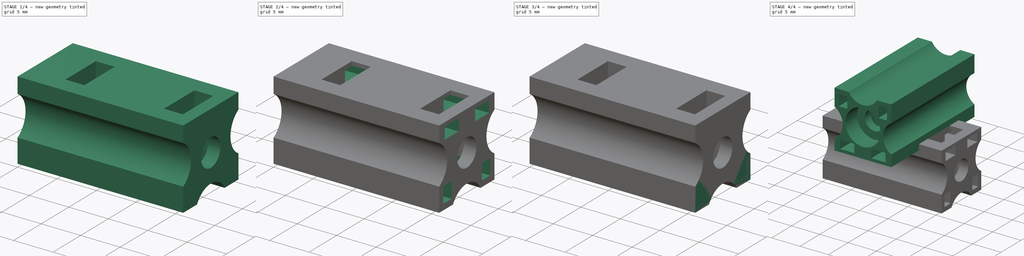
[diagram: build sequence overview — one tinted view per stage of 4, left to right]
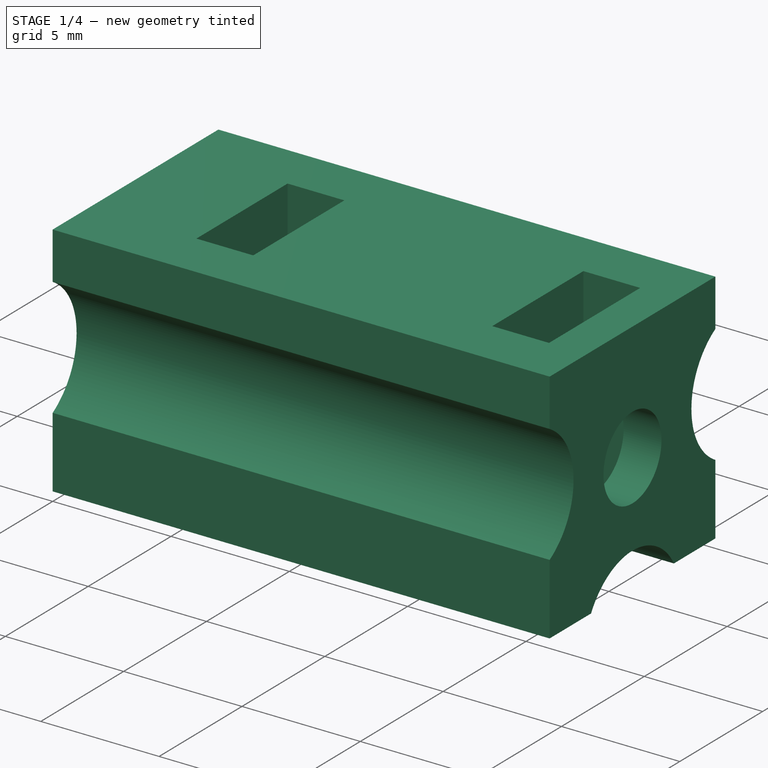
[diagram: stage 1 of 4 — iso view after this stage's code; geometry added in this stage tinted green]
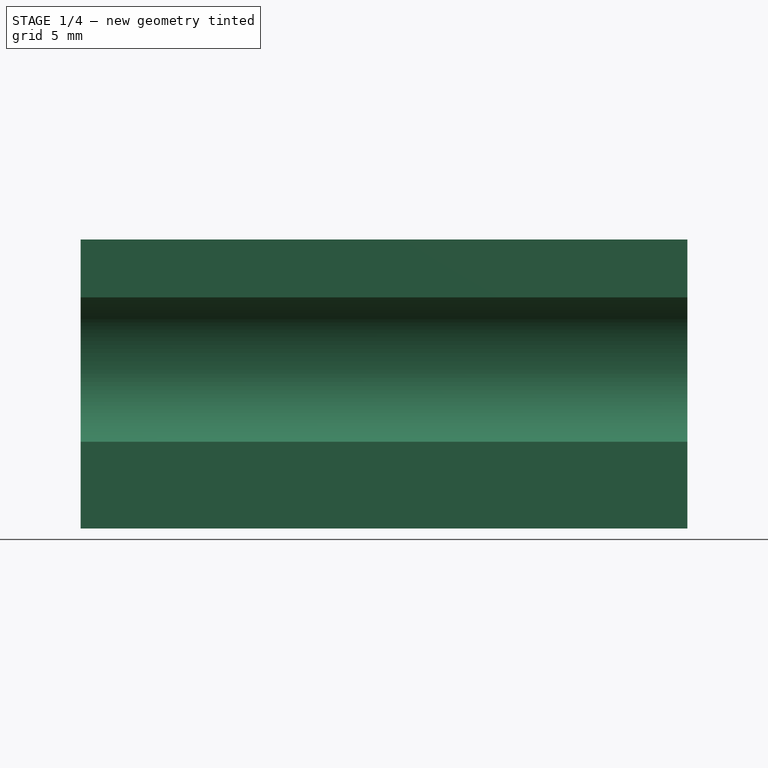
[diagram: stage 1 of 4 — front view after this stage's code; geometry added in this stage tinted green]
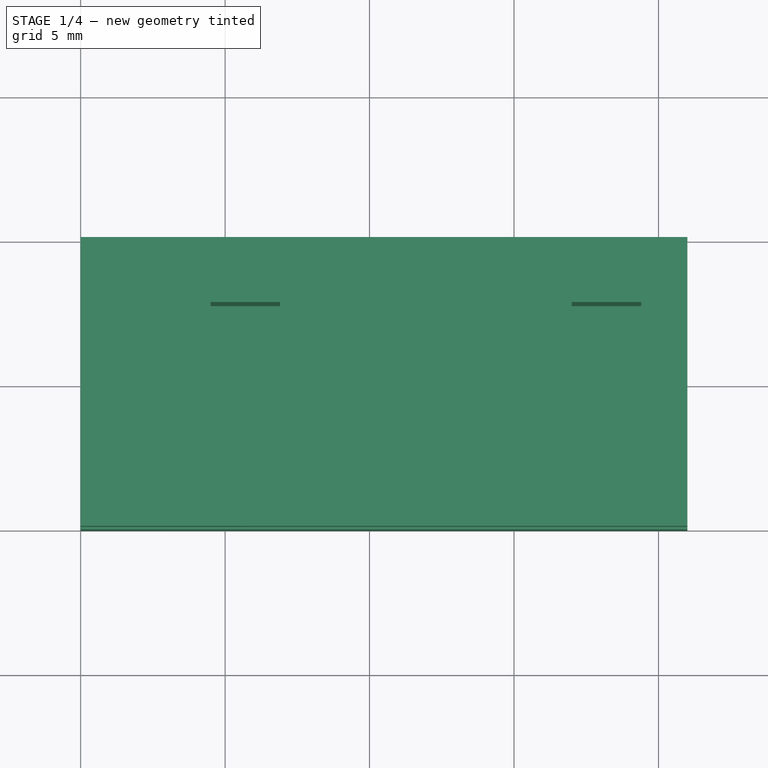
[diagram: stage 1 of 4 — top view after this stage's code; geometry added in this stage tinted green]
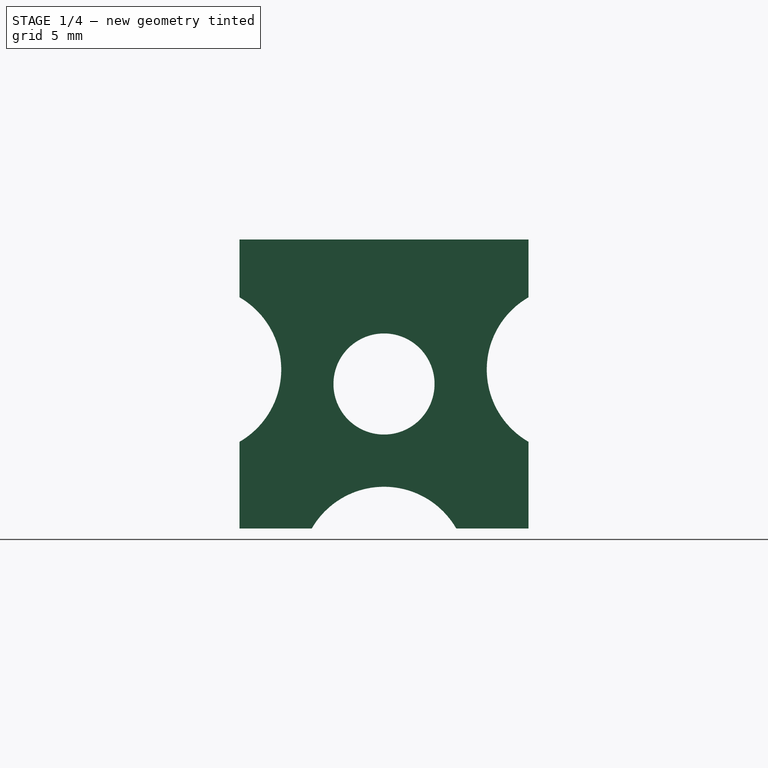
[diagram: stage 1 of 4 — right view after this stage's code; geometry added in this stage tinted green]
FCSTD DOCUMENT  (FreeCAD 0.19R24344 (Git))
Label: MicroManipulator_Carriage_bottom-center
Comment: This is the carriage for X and Y axis of the MicroManipulator. This is derived from the Carriage (combination of 2).
License: Creative Commons Attribution-NonCommercial-ShareAlike
LicenseURL: http://creativecommons.org/licenses/by-nc-sa/4.0/
objects: Sketcher::SketchObject×14, PartDesign::Pocket×6, PartDesign::CoordinateSystem×3, PartDesign::Pad×2, PartDesign::Body×2, Part::MultiFuse×1, App::Part×1
note: 36 computed .brp shape members not serialized (recipe doc carries the construction recipe); baked Part::Feature solids carry a one-line shape summary decoded from their .brp

FEATURE [Sketcher::SketchObject] Sketch
  FullyConstrained = true
  MapMode = 5
  Placement = pos=(0,0,0) rot=(0.57735,0.57735,0.57735;2.0944rad)
  Support = -> [YZ_Plane001]
  sketch-geometry (11):
    g0: LineSegment StartX=-5 StartY=8 StartZ=0 EndX=-5 EndY=10 EndZ=0
    g1: LineSegment StartX=-5 StartY=10 StartZ=0 EndX=5 EndY=10 EndZ=0
    g2: LineSegment StartX=5 StartY=10 StartZ=0 EndX=5 EndY=8 EndZ=0
    g3: LineSegment StartX=5 StartY=3 StartZ=0 EndX=5 EndY=4e-16 EndZ=0
    g4: LineSegment StartX=5 StartY=4e-16 StartZ=0 EndX=2.5 EndY=4e-16 EndZ=0
    g5: LineSegment StartX=-2.5 StartY=-2e-16 StartZ=0 EndX=-5 EndY=-2e-16 EndZ=0
    g6: LineSegment StartX=-5 StartY=-2e-16 StartZ=0 EndX=-5 EndY=3 EndZ=0
    g7: ArcOfCircle CenterX=2e-16 CenterY=-1.44338 CenterZ=0 NormalX=0 NormalY=0 NormalZ=1 AngleXU=0 Radius=2.88675 StartAngle=0.523599 EndAngle=2.61799
    g8: ArcOfCircle CenterX=-6.44338 CenterY=5.5 CenterZ=0 NormalX=0 NormalY=0 NormalZ=1 AngleXU=0 Radius=2.88675 StartAngle=5.23599 EndAngle=7.33038
    g9: ArcOfCircle CenterX=6.44338 CenterY=5.5 CenterZ=0 NormalX=0 NormalY=0 NormalZ=1 AngleXU=0 Radius=2.88675 StartAngle=2.0944 EndAngle=4.18879
    g10: Circle CenterX=0 CenterY=5 CenterZ=0 NormalX=0 NormalY=0 NormalZ=1 AngleXU=0 Radius=1.75
  constraints (34):
    c: Vertical(g0)
    c: Coincident(g1,g0)
    c: Coincident(g2,g1)
    c: Vertical(g2)
    c: Vertical(g3)
    c: Coincident(g4,g3)
    c: Horizontal(g4)
    c: Horizontal(g5)
    c: Coincident(g6,g5)
    c: Vertical(g6)
    c: Coincident(g7,g5)
    c: Coincident(g7,g4)
    c: Coincident(g8,g6)
    c: Coincident(g8,g0)
    c: Coincident(g9,g3)
    c: Coincident(g9,g2)
    c: Vertical(g0,g6)
    c: Vertical(g2,g3)
    c: Angle(g8) = 2.0944
    c: Angle(g9) = 2.0944
    c: Angle(g7) = 2.0944
    c: Distance(g1) = 10
    c: Distance(g5,g4) = 5
    c: Distance(g6,g0) = 5
    c: Distance(g2,g3) = 5
    c: Horizontal(g0,g2)
    c: Symmetric(g1,g0,g-2)
    c: PointOnObject(g3,g-1)
    c: Symmetric(g4,g5,g-2)
    c: Distance(g0,g5) = 10
    c: Distance(g6,g5) = 3
    c: PointOnObject(g10,g-2)
    c: Diameter(g10) = 3.5
    c: DistanceY(g10) = 5
FEATURE [PartDesign::Pad] Pad
  Direction = (1,1,1)
  Length = 21
  Length2 = 100
  Placement = pos=(0,0,0) rot=(0.57735,0.57735,0.57735;2.0944rad)
  Profile = -> Sketch
  Type = 0
FEATURE [Sketcher::SketchObject] Sketch002
  FullyConstrained = true
  MapMode = 5
  Placement = pos=(-3e-15,4e-15,10) rot=(0,0,-1;1.5708rad)
  sketch-geometry (8):
    g0: LineSegment StartX=-2.75 StartY=6.9 StartZ=0 EndX=2.75 EndY=6.9 EndZ=0
    g1: LineSegment StartX=2.75 StartY=6.9 StartZ=0 EndX=2.75 EndY=4.5 EndZ=0
    g2: LineSegment StartX=2.75 StartY=4.5 StartZ=0 EndX=-2.75 EndY=4.5 EndZ=0
    g3: LineSegment StartX=-2.75 StartY=4.5 StartZ=0 EndX=-2.75 EndY=6.9 EndZ=0
    g4: LineSegment StartX=-2.75 StartY=19.4 StartZ=0 EndX=2.75 EndY=19.4 EndZ=0
    g5: LineSegment StartX=2.75 StartY=19.4 StartZ=0 EndX=2.75 EndY=17 EndZ=0
    g6: LineSegment StartX=2.75 StartY=17 StartZ=0 EndX=-2.75 EndY=17 EndZ=0
    g7: LineSegment StartX=-2.75 StartY=17 StartZ=0 EndX=-2.75 EndY=19.4 EndZ=0
  constraints (22):
    c: Coincident(g0,g1)
    c: Coincident(g1,g2)
    c: Coincident(g2,g3)
    c: Coincident(g3,g0)
    c: Horizontal(g2)
    c: Vertical(g1)
    c: Vertical(g3)
    c: Distance(g3) = 2.4
    c: Distance(g0) = 5.5
    c: Symmetric(g0,g0,g-2)
    c: DistanceY(g-1,g1) = 4.5
    c: Coincident(g4,g5)
    c: Coincident(g5,g6)
    c: Coincident(g6,g7)
    c: Coincident(g7,g4)
    c: Horizontal(g6)
    c: Vertical(g5)
    c: Vertical(g7)
    c: Distance(g7) = 2.4
    c: Distance(g4) = 5.5
    c: Symmetric(g4,g4,g-2)
    c: DistanceY(g-1,g5) = 17
FEATURE [PartDesign::Pocket] Pocket
  BaseFeature = -> Pad
  Length = 8
  Length2 = 100
  Placement = pos=(0,0,0) rot=(0.57735,0.57735,0.57735;2.0944rad)
  Profile = -> Sketch002
  Type = 0
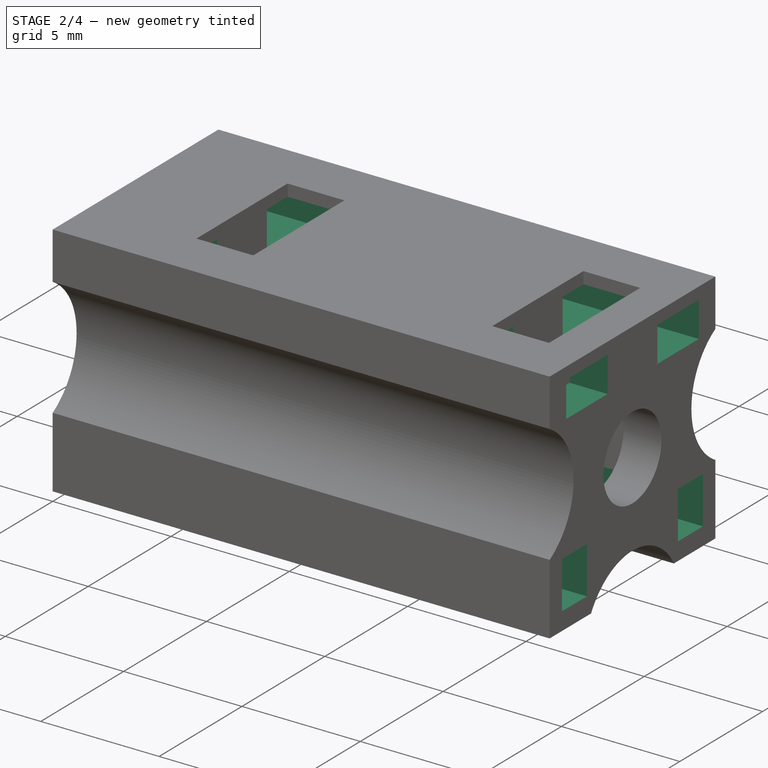
[diagram: stage 2 of 4 — iso view after this stage's code; geometry added in this stage tinted green]
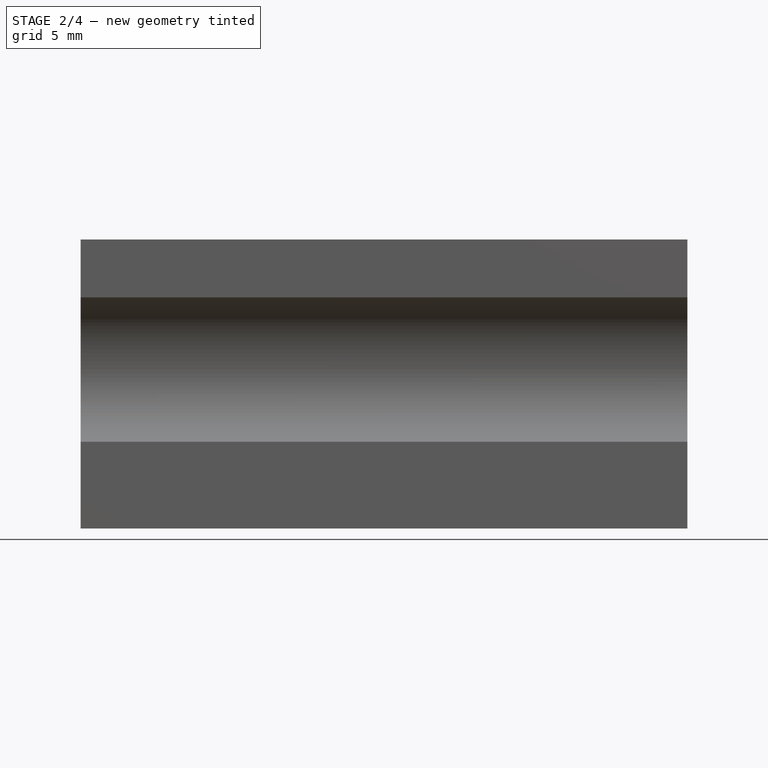
[diagram: stage 2 of 4 — front view after this stage's code; geometry added in this stage tinted green]
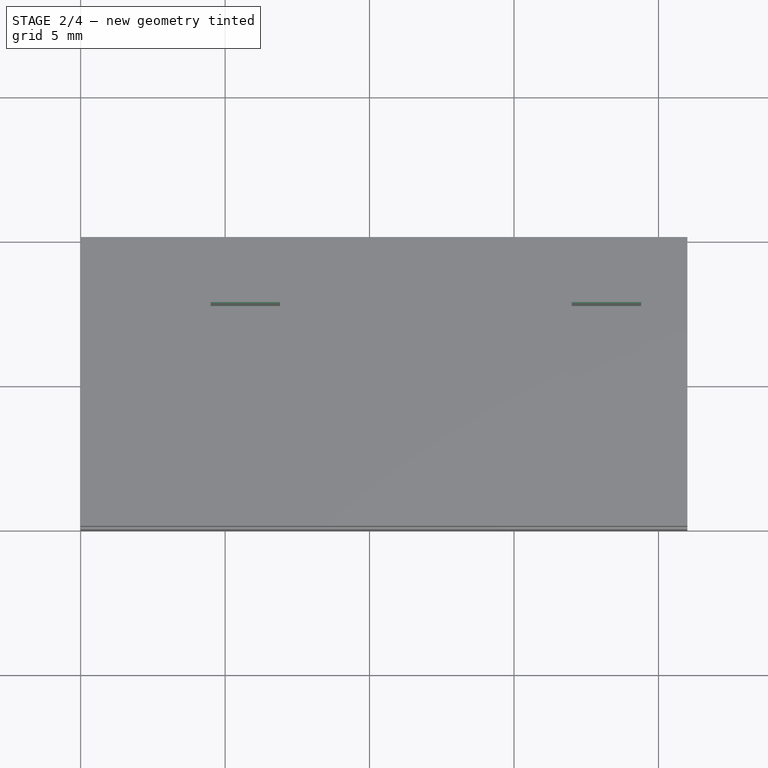
[diagram: stage 2 of 4 — top view after this stage's code; geometry added in this stage tinted green]
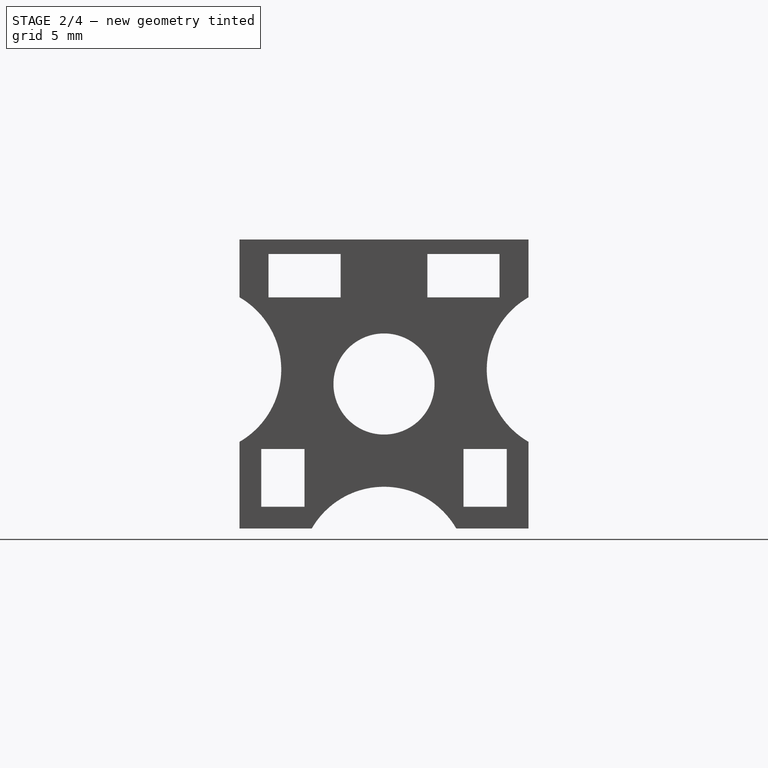
[diagram: stage 2 of 4 — right view after this stage's code; geometry added in this stage tinted green]
FEATURE [Sketcher::SketchObject] Sketch003
  FullyConstrained = true
  MapMode = 5
  Placement = pos=(0,0,0) rot=(0.57735,0.57735,-0.57735;4.18879rad)
  Support = -> [Pocket]
  sketch-geometry (1):
    g0: Circle CenterX=0 CenterY=-5 CenterZ=0 NormalX=0 NormalY=0 NormalZ=1 AngleXU=0 Radius=3.1
  constraints (3):
    c: PointOnObject(g0,g-2)
    c: Diameter(g0) = 6.2
    c: DistanceY(g0,g-1) = 5
FEATURE [PartDesign::Pocket] Pocket001
  BaseFeature = -> Pocket
  Length = 3
  Length2 = 100
  Placement = pos=(0,0,0) rot=(0.57735,0.57735,0.57735;2.0944rad)
  Profile = -> Sketch003
  Type = 0
FEATURE [Sketcher::SketchObject] Sketch004
  FullyConstrained = true
  MapMode = 5
  Placement = pos=(21,-4.6e-15,4.6e-15) rot=(0.57735,0.57735,0.57735;2.0944rad)
  Support = -> [Pocket001]
FEATURE [Sketcher::SketchObject] Sketch005
  FullyConstrained = true
  MapMode = 5
  Placement = pos=(21,-4.6e-15,4.6e-15) rot=(0.57735,0.57735,0.57735;2.0944rad)
  Support = -> [Pocket001]
FEATURE [Sketcher::SketchObject] Sketch006
  FullyConstrained = true
  MapMode = 5
  Placement = pos=(0,0,0) rot=(0.57735,0.57735,-0.57735;4.18879rad)
  Support = -> [Pocket001]
FEATURE [Sketcher::SketchObject] Sketch007
  FullyConstrained = true
  MapMode = 5
  Placement = pos=(0,0,0) rot=(0.57735,0.57735,-0.57735;4.18879rad)
  Support = -> [Pocket001]
  sketch-geometry (16):
    g0: LineSegment StartX=-4.25 StartY=-0.75 StartZ=0 EndX=-2.75 EndY=-0.75 EndZ=0
    g1: LineSegment StartX=-2.75 StartY=-0.75 StartZ=0 EndX=-2.75 EndY=-2.75 EndZ=0
    g2: LineSegment StartX=-2.75 StartY=-2.75 StartZ=0 EndX=-4.25 EndY=-2.75 EndZ=0
    g3: LineSegment StartX=-4.25 StartY=-2.75 StartZ=0 EndX=-4.25 EndY=-0.75 EndZ=0
    g4: LineSegment StartX=2.75 StartY=-0.75 StartZ=0 EndX=4.25 EndY=-0.75 EndZ=0
    g5: LineSegment StartX=4.25 StartY=-0.75 StartZ=0 EndX=4.25 EndY=-2.75 EndZ=0
    g6: LineSegment StartX=4.25 StartY=-2.75 StartZ=0 EndX=2.75 EndY=-2.75 EndZ=0
    g7: LineSegment StartX=2.75 StartY=-2.75 StartZ=0 EndX=2.75 EndY=-0.75 EndZ=0
    g8: LineSegment StartX=-4 StartY=-8 StartZ=0 EndX=-1.5 EndY=-8 EndZ=0
    g9: LineSegment StartX=-1.5 StartY=-8 StartZ=0 EndX=-1.5 EndY=-9.5 EndZ=0
    g10: LineSegment StartX=-1.5 StartY=-9.5 StartZ=0 EndX=-4 EndY=-9.5 EndZ=0
    g11: LineSegment StartX=-4 StartY=-9.5 StartZ=0 EndX=-4 EndY=-8 EndZ=0
    g12: LineSegment StartX=1.5 StartY=-8 StartZ=0 EndX=4 EndY=-8 EndZ=0
    g13: LineSegment StartX=4 StartY=-8 StartZ=0 EndX=4 EndY=-9.5 EndZ=0
    g14: LineSegment StartX=4 StartY=-9.5 StartZ=0 EndX=1.5 EndY=-9.5 EndZ=0
    g15: LineSegment StartX=1.5 StartY=-9.5 StartZ=0 EndX=1.5 EndY=-8 EndZ=0
  constraints (48):
    c: Coincident(g0,g1)
    c: Coincident(g1,g2)
    c: Coincident(g2,g3)
    c: Coincident(g3,g0)
    c: Horizontal(g0)
    c: Horizontal(g2)
    c: Vertical(g1)
    c: Vertical(g3)
    c: Distance(g0) = 1.5
    c: Distance(g3) = 2
    c: DistanceY(g0,g-1) = 0.75
    c: DistanceX(g0,g-1) = 2.75
    c: Coincident(g4,g5)
    c: Coincident(g5,g6)
    c: Coincident(g6,g7)
    c: Coincident(g7,g4)
    c: Horizontal(g4)
    c: Horizontal(g6)
    c: Vertical(g5)
    c: Vertical(g7)
    c: Distance(g4) = 1.5
    c: Distance(g7) = 2
    c: DistanceY(g4,g-1) = 0.75
    c: DistanceX(g-1,g4) = 2.75
    c: Coincident(g8,g9)
    c: Coincident(g9,g10)
    c: Coincident(g10,g11)
    c: Coincident(g11,g8)
    c: Horizontal(g8)
    c: Horizontal(g10)
    c: Vertical(g9)
    c: Vertical(g11)
    c: Coincident(g12,g13)
    c: Coincident(g13,g14)
    c: Coincident(g14,g15)
    c: Coincident(g15,g12)
    c: Horizontal(g12)
    c: Horizontal(g14)
    c: Vertical(g13)
    c: Vertical(g15)
    c: Distance(g10) = 2.5
    c: Distance(g14) = 2.5
    c: Distance(g9) = 1.5
    c: Distance(g15) = 1.5
    c: DistanceX(g8,g-1) = 1.5
    c: DistanceX(g-1,g12) = 1.5
    c: Horizontal(g12,g8)
    c: DistanceY(g8,g-1) = 8
FEATURE [PartDesign::Pocket] Pocket002
  BaseFeature = -> Pocket001
  Length = 5
  Length2 = 100
  Placement = pos=(0,0,0) rot=(0.57735,0.57735,0.57735;2.0944rad)
  Profile = -> Sketch007
  Type = 1
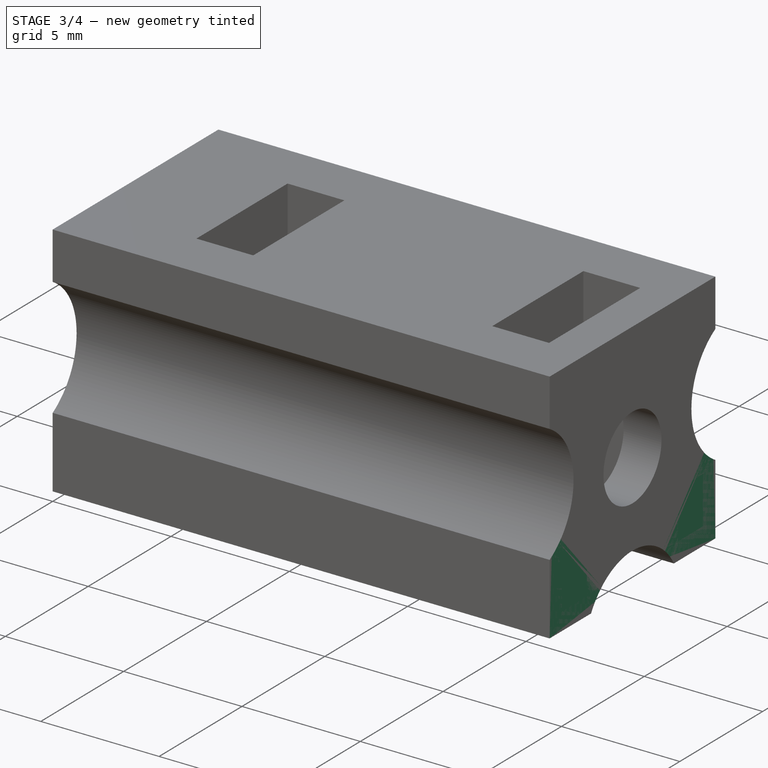
[diagram: stage 3 of 4 — iso view after this stage's code; geometry added in this stage tinted green]
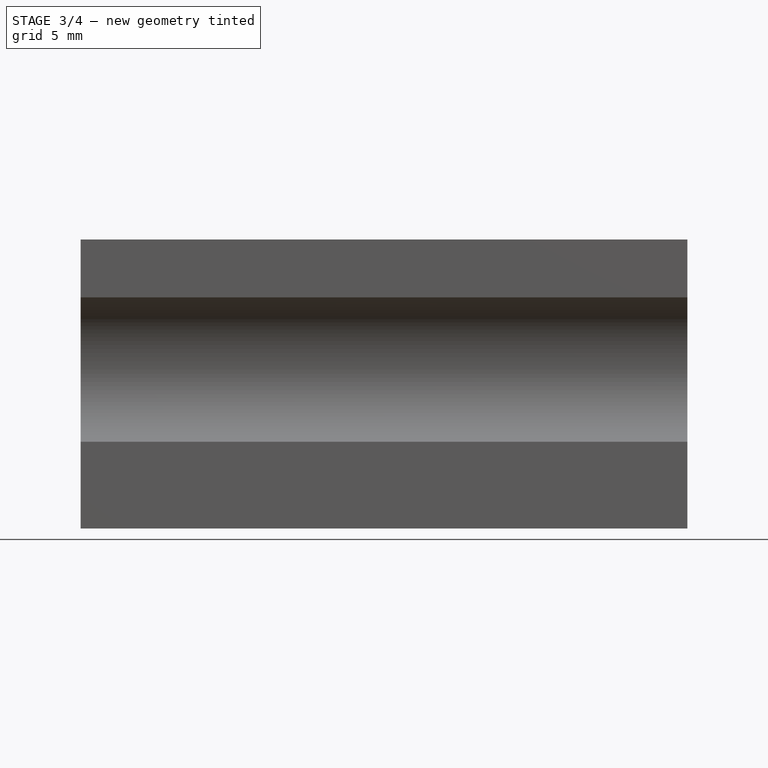
[diagram: stage 3 of 4 — front view after this stage's code; geometry added in this stage tinted green]
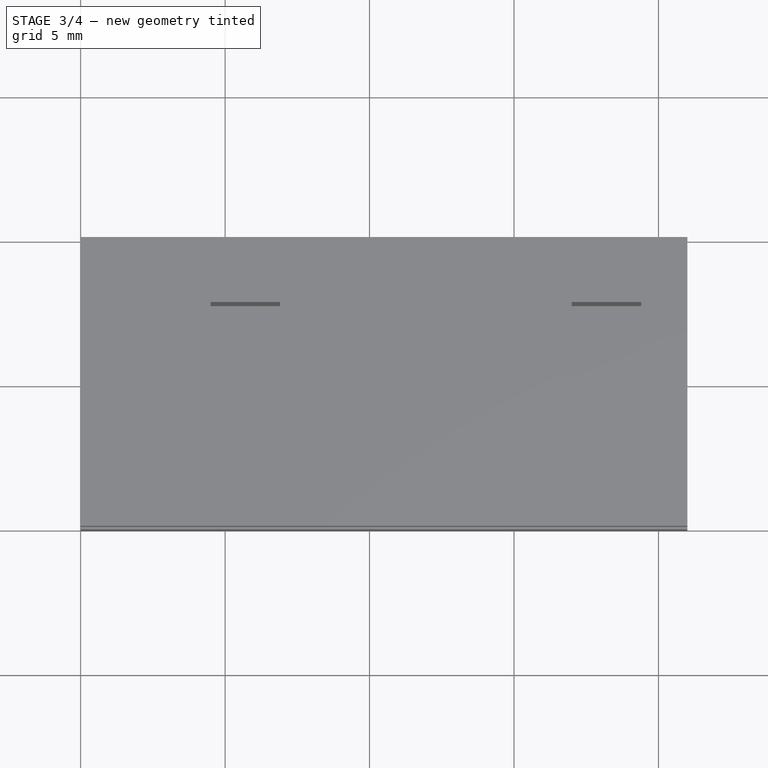
[diagram: stage 3 of 4 — top view after this stage's code; geometry added in this stage tinted green]
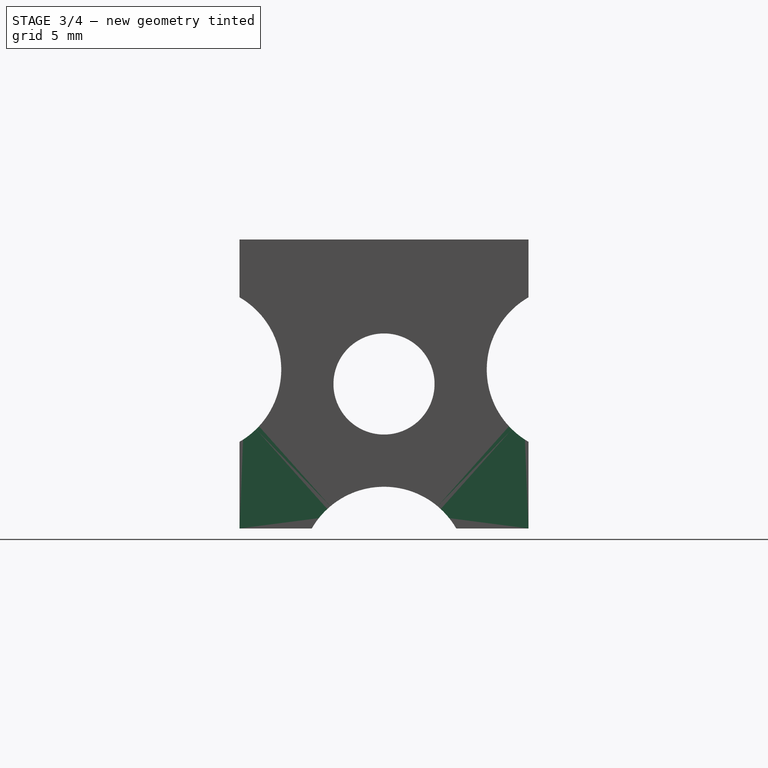
[diagram: stage 3 of 4 — right view after this stage's code; geometry added in this stage tinted green]
FEATURE [PartDesign::Body] Body001
  Group = -> [Sketch,Pad,Sketch002,Pocket,Sketch003,Pocket001,Sketch004,Sketch005,Sketch006,Sketch007,Pocket002]
  Origin = -> Origin001
  Tip = -> Pocket002
FEATURE [Sketcher::SketchObject] Sketch008
  FullyConstrained = true
  MapMode = 5
  Placement = pos=(0,0,0) rot=(0.57735,0.57735,0.57735;2.0944rad)
  Support = -> [YZ_Plane002]
  sketch-geometry (11):
    g0: LineSegment StartX=-5 StartY=8 StartZ=0 EndX=-5 EndY=10 EndZ=0
    g1: LineSegment StartX=-5 StartY=10 StartZ=0 EndX=5 EndY=10 EndZ=0
    g2: LineSegment StartX=5 StartY=10 StartZ=0 EndX=5 EndY=8 EndZ=0
    g3: LineSegment StartX=5 StartY=3 StartZ=0 EndX=5 EndY=4e-16 EndZ=0
    g4: LineSegment StartX=5 StartY=4e-16 StartZ=0 EndX=2.5 EndY=4e-16 EndZ=0
    g5: LineSegment StartX=-2.5 StartY=-2e-16 StartZ=0 EndX=-5 EndY=-2e-16 EndZ=0
    g6: LineSegment StartX=-5 StartY=-2e-16 StartZ=0 EndX=-5 EndY=3 EndZ=0
    g7: ArcOfCircle CenterX=2e-16 CenterY=-1.44338 CenterZ=0 NormalX=0 NormalY=0 NormalZ=1 AngleXU=0 Radius=2.88675 StartAngle=0.523599 EndAngle=2.61799
    g8: ArcOfCircle CenterX=-6.44338 CenterY=5.5 CenterZ=0 NormalX=0 NormalY=0 NormalZ=1 AngleXU=0 Radius=2.88675 StartAngle=5.23599 EndAngle=7.33038
    g9: ArcOfCircle CenterX=6.44338 CenterY=5.5 CenterZ=0 NormalX=0 NormalY=0 NormalZ=1 AngleXU=0 Radius=2.88675 StartAngle=2.0944 EndAngle=4.18879
    g10: Circle CenterX=0 CenterY=5 CenterZ=0 NormalX=0 NormalY=0 NormalZ=1 AngleXU=0 Radius=1.75
  constraints (34):
    c: Vertical(g0)
    c: Coincident(g1,g0)
    c: Coincident(g2,g1)
    c: Vertical(g2)
    c: Vertical(g3)
    c: Coincident(g4,g3)
    c: Horizontal(g4)
    c: Horizontal(g5)
    c: Coincident(g6,g5)
    c: Vertical(g6)
    c: Coincident(g7,g5)
    c: Coincident(g7,g4)
    c: Coincident(g8,g6)
    c: Coincident(g8,g0)
    c: Coincident(g9,g3)
    c: Coincident(g9,g2)
    c: Vertical(g0,g6)
    c: Vertical(g2,g3)
    c: Angle(g8) = 2.0944
    c: Angle(g9) = 2.0944
    c: Angle(g7) = 2.0944
    c: Distance(g1) = 10
    c: Distance(g5,g4) = 5
    c: Distance(g6,g0) = 5
    c: Distance(g2,g3) = 5
    c: Horizontal(g0,g2)
    c: Symmetric(g1,g0,g-2)
    c: PointOnObject(g3,g-1)
    c: Symmetric(g4,g5,g-2)
    c: Distance(g0,g5) = 10
    c: Distance(g6,g5) = 3
    c: PointOnObject(g10,g-2)
    c: Diameter(g10) = 3.5
    c: DistanceY(g10) = 5
FEATURE [PartDesign::Pad] Pad001
  Direction = (1,1,1)
  Length = 21
  Length2 = 100
  Placement = pos=(0,0,0) rot=(0.57735,0.57735,0.57735;2.0944rad)
  Profile = -> Sketch008
  Type = 0
FEATURE [Sketcher::SketchObject] Sketch009
  FullyConstrained = true
  MapMode = 5
  Placement = pos=(-3e-15,4e-15,10) rot=(0,0,-1;1.5708rad)
  sketch-geometry (8):
    g0: LineSegment StartX=-2.75 StartY=6.9 StartZ=0 EndX=2.75 EndY=6.9 EndZ=0
    g1: LineSegment StartX=2.75 StartY=6.9 StartZ=0 EndX=2.75 EndY=4.5 EndZ=0
    g2: LineSegment StartX=2.75 StartY=4.5 StartZ=0 EndX=-2.75 EndY=4.5 EndZ=0
    g3: LineSegment StartX=-2.75 StartY=4.5 StartZ=0 EndX=-2.75 EndY=6.9 EndZ=0
    g4: LineSegment StartX=-2.75 StartY=19.4 StartZ=0 EndX=2.75 EndY=19.4 EndZ=0
    g5: LineSegment StartX=2.75 StartY=19.4 StartZ=0 EndX=2.75 EndY=17 EndZ=0
    g6: LineSegment StartX=2.75 StartY=17 StartZ=0 EndX=-2.75 EndY=17 EndZ=0
    g7: LineSegment StartX=-2.75 StartY=17 StartZ=0 EndX=-2.75 EndY=19.4 EndZ=0
  constraints (22):
    c: Coincident(g0,g1)
    c: Coincident(g1,g2)
    c: Coincident(g2,g3)
    c: Coincident(g3,g0)
    c: Horizontal(g2)
    c: Vertical(g1)
    c: Vertical(g3)
    c: Distance(g3) = 2.4
    c: Distance(g0) = 5.5
    c: Symmetric(g0,g0,g-2)
    c: DistanceY(g-1,g1) = 4.5
    c: Coincident(g4,g5)
    c: Coincident(g5,g6)
    c: Coincident(g6,g7)
    c: Coincident(g7,g4)
    c: Horizontal(g6)
    c: Vertical(g5)
    c: Vertical(g7)
    c: Distance(g7) = 2.4
    c: Distance(g4) = 5.5
    c: Symmetric(g4,g4,g-2)
    c: DistanceY(g-1,g5) = 17
FEATURE [PartDesign::Pocket] Pocket003
  BaseFeature = -> Pad001
  Length = 8
  Length2 = 100
  Placement = pos=(0,0,0) rot=(0.57735,0.57735,0.57735;2.0944rad)
  Profile = -> Sketch009
  Type = 0
FEATURE [Sketcher::SketchObject] Sketch010
  FullyConstrained = true
  MapMode = 5
  Placement = pos=(0,0,0) rot=(0.57735,0.57735,-0.57735;4.18879rad)
  Support = -> [Pocket003]
  sketch-geometry (1):
    g0: Circle CenterX=0 CenterY=-5 CenterZ=0 NormalX=0 NormalY=0 NormalZ=1 AngleXU=0 Radius=3.1
  constraints (3):
    c: PointOnObject(g0,g-2)
    c: Diameter(g0) = 6.2
    c: DistanceY(g0,g-1) = 5
FEATURE [PartDesign::Pocket] Pocket004
  BaseFeature = -> Pocket003
  Length = 3
  Length2 = 100
  Placement = pos=(0,0,0) rot=(0.57735,0.57735,0.57735;2.0944rad)
  Profile = -> Sketch010
  Type = 0
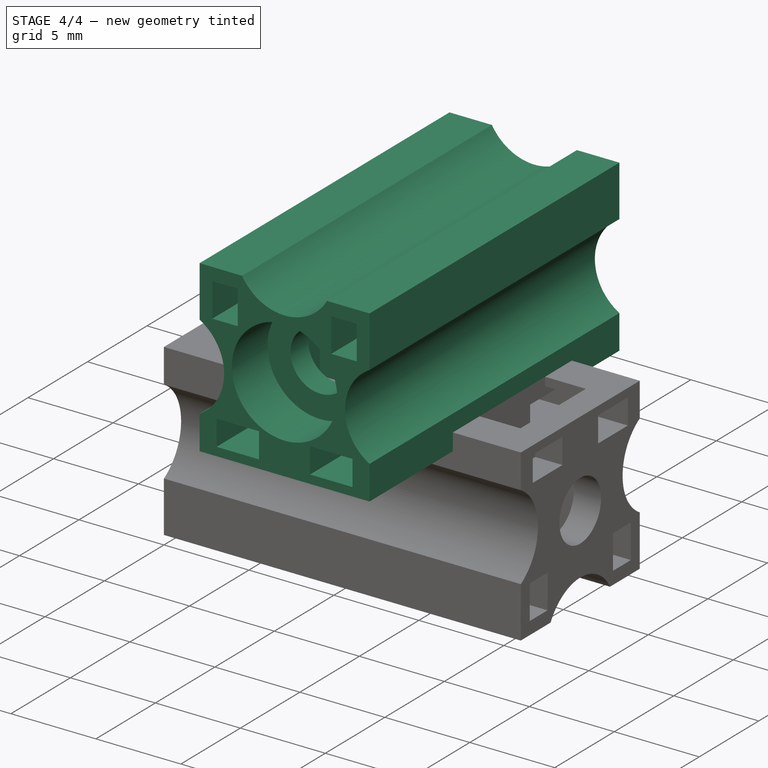
[diagram: stage 4 of 4 — iso view after this stage's code; geometry added in this stage tinted green]
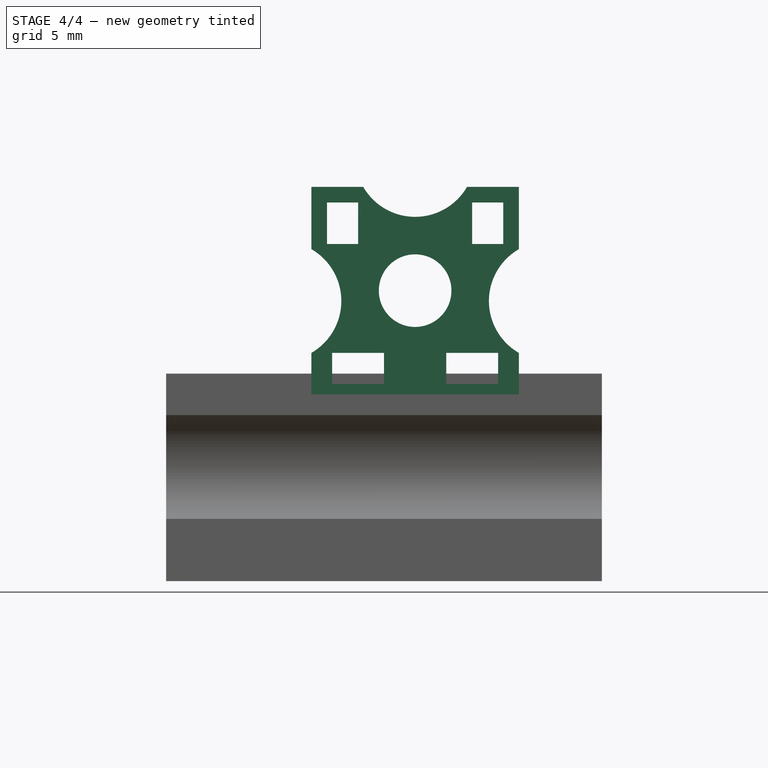
[diagram: stage 4 of 4 — front view after this stage's code; geometry added in this stage tinted green]
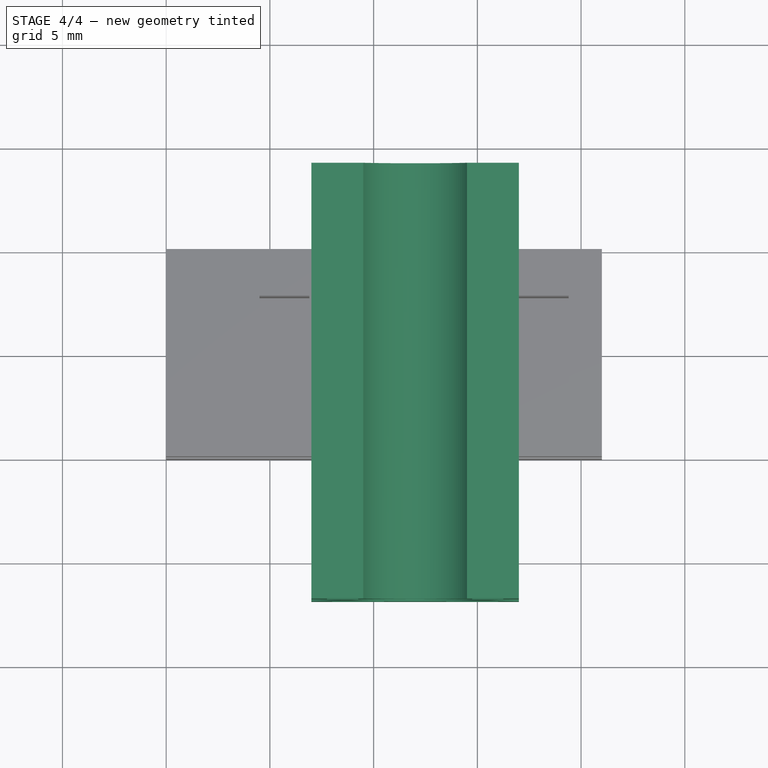
[diagram: stage 4 of 4 — top view after this stage's code; geometry added in this stage tinted green]
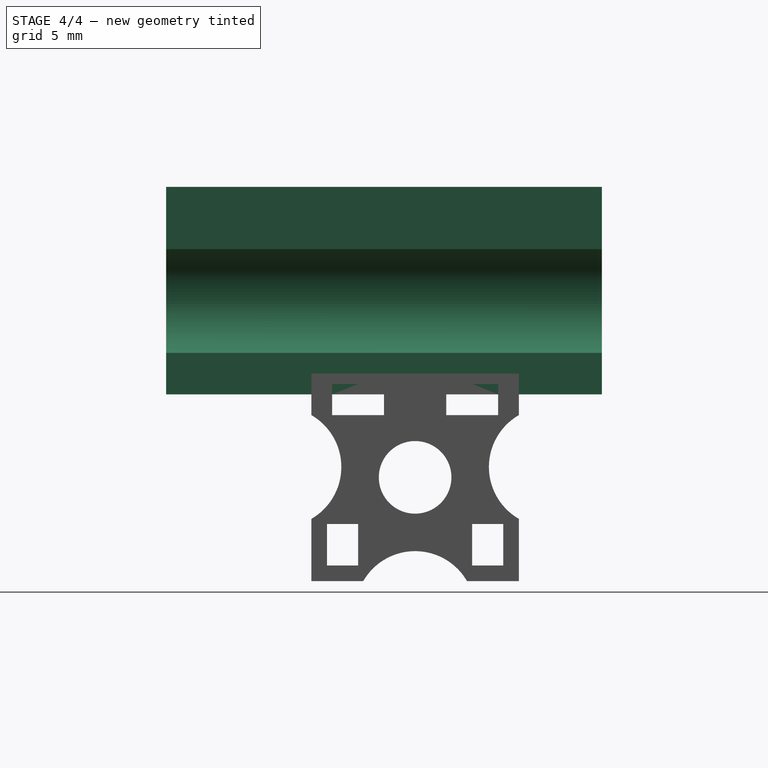
[diagram: stage 4 of 4 — right view after this stage's code; geometry added in this stage tinted green]
FEATURE [Sketcher::SketchObject] Sketch011
  FullyConstrained = true
  MapMode = 5
  Placement = pos=(21,-4.6e-15,4.6e-15) rot=(0.57735,0.57735,0.57735;2.0944rad)
  Support = -> [Pocket004]
FEATURE [Sketcher::SketchObject] Sketch012
  FullyConstrained = true
  MapMode = 5
  Placement = pos=(21,-4.6e-15,4.6e-15) rot=(0.57735,0.57735,0.57735;2.0944rad)
  Support = -> [Pocket004]
FEATURE [Sketcher::SketchObject] Sketch013
  FullyConstrained = true
  MapMode = 5
  Placement = pos=(0,0,0) rot=(0.57735,0.57735,-0.57735;4.18879rad)
  Support = -> [Pocket004]
FEATURE [Sketcher::SketchObject] Sketch014
  FullyConstrained = true
  MapMode = 5
  Placement = pos=(0,0,0) rot=(0.57735,0.57735,-0.57735;4.18879rad)
  Support = -> [Pocket004]
  sketch-geometry (16):
    g0: LineSegment StartX=-4.25 StartY=-0.75 StartZ=0 EndX=-2.75 EndY=-0.75 EndZ=0
    g1: LineSegment StartX=-2.75 StartY=-0.75 StartZ=0 EndX=-2.75 EndY=-2.75 EndZ=0
    g2: LineSegment StartX=-2.75 StartY=-2.75 StartZ=0 EndX=-4.25 EndY=-2.75 EndZ=0
    g3: LineSegment StartX=-4.25 StartY=-2.75 StartZ=0 EndX=-4.25 EndY=-0.75 EndZ=0
    g4: LineSegment StartX=2.75 StartY=-0.75 StartZ=0 EndX=4.25 EndY=-0.75 EndZ=0
    g5: LineSegment StartX=4.25 StartY=-0.75 StartZ=0 EndX=4.25 EndY=-2.75 EndZ=0
    g6: LineSegment StartX=4.25 StartY=-2.75 StartZ=0 EndX=2.75 EndY=-2.75 EndZ=0
    g7: LineSegment StartX=2.75 StartY=-2.75 StartZ=0 EndX=2.75 EndY=-0.75 EndZ=0
    g8: LineSegment StartX=-4 StartY=-8 StartZ=0 EndX=-1.5 EndY=-8 EndZ=0
    g9: LineSegment StartX=-1.5 StartY=-8 StartZ=0 EndX=-1.5 EndY=-9.5 EndZ=0
    g10: LineSegment StartX=-1.5 StartY=-9.5 StartZ=0 EndX=-4 EndY=-9.5 EndZ=0
    g11: LineSegment StartX=-4 StartY=-9.5 StartZ=0 EndX=-4 EndY=-8 EndZ=0
    g12: LineSegment StartX=1.5 StartY=-8 StartZ=0 EndX=4 EndY=-8 EndZ=0
    g13: LineSegment StartX=4 StartY=-8 StartZ=0 EndX=4 EndY=-9.5 EndZ=0
    g14: LineSegment StartX=4 StartY=-9.5 StartZ=0 EndX=1.5 EndY=-9.5 EndZ=0
    g15: LineSegment StartX=1.5 StartY=-9.5 StartZ=0 EndX=1.5 EndY=-8 EndZ=0
  constraints (48):
    c: Coincident(g0,g1)
    c: Coincident(g1,g2)
    c: Coincident(g2,g3)
    c: Coincident(g3,g0)
    c: Horizontal(g0)
    c: Horizontal(g2)
    c: Vertical(g1)
    c: Vertical(g3)
    c: Distance(g0) = 1.5
    c: Distance(g3) = 2
    c: DistanceY(g0,g-1) = 0.75
    c: DistanceX(g0,g-1) = 2.75
    c: Coincident(g4,g5)
    c: Coincident(g5,g6)
    c: Coincident(g6,g7)
    c: Coincident(g7,g4)
    c: Horizontal(g4)
    c: Horizontal(g6)
    c: Vertical(g5)
    c: Vertical(g7)
    c: Distance(g4) = 1.5
    c: Distance(g7) = 2
    c: DistanceY(g4,g-1) = 0.75
    c: DistanceX(g-1,g4) = 2.75
    c: Coincident(g8,g9)
    c: Coincident(g9,g10)
    c: Coincident(g10,g11)
    c: Coincident(g11,g8)
    c: Horizontal(g8)
    c: Horizontal(g10)
    c: Vertical(g9)
    c: Vertical(g11)
    c: Coincident(g12,g13)
    c: Coincident(g13,g14)
    c: Coincident(g14,g15)
    c: Coincident(g15,g12)
    c: Horizontal(g12)
    c: Horizontal(g14)
    c: Vertical(g13)
    c: Vertical(g15)
    c: Distance(g10) = 2.5
    c: Distance(g14) = 2.5
    c: Distance(g9) = 1.5
    c: Distance(g15) = 1.5
    c: DistanceX(g8,g-1) = 1.5
    c: DistanceX(g-1,g12) = 1.5
    c: Horizontal(g12,g8)
    c: DistanceY(g8,g-1) = 8
FEATURE [PartDesign::Pocket] Pocket005
  BaseFeature = -> Pocket004
  Length = 5
  Length2 = 100
  Placement = pos=(0,0,0) rot=(0.57735,0.57735,0.57735;2.0944rad)
  Profile = -> Sketch014
  Type = 1
FEATURE [PartDesign::Body] Body002
  Group = -> [Sketch008,Pad001,Sketch009,Pocket003,Sketch010,Pocket004,Sketch011,Sketch012,Sketch013,Sketch014,Pocket005]
  Origin = -> Origin002
  Placement = pos=(12,-12,19) rot=(0.707107,0.707107,0;3.14159rad)
  Tip = -> Pocket005
FEATURE [Part::MultiFuse] Fusion
  Shapes = -> [Body001,Body002]
FEATURE [PartDesign::CoordinateSystem] LCS_0
  AttacherType = Attacher::AttachEngine3D
  MapMode = 2
  Support = -> [X_Axis]
FEATURE [PartDesign::CoordinateSystem] ScrewTop_LCS
  AttacherType = Attacher::AttachEngine3D
  AttachmentOffset = pos=(0,0,0) rot=(0,1,0;3.14159rad)
  MapMode = 45
  Placement = pos=(12,-12,14) rot=(0,0.707107,-0.707107;3.14159rad)
  Support = -> [Fusion]
FEATURE [PartDesign::CoordinateSystem] ScrewBottom_LCS
  AttacherType = Attacher::AttachEngine3D
  MapMode = 45
  Placement = pos=(-2e-15,1.47e-14,5) rot=(0.57735,0.57735,0.57735;2.0944rad)
  Support = -> [Pocket002]
FEATURE [App::Part] CenterSlider  label="Carriage_bottom-center"
  Group = -> [LCS_0,Body002,Body001,Fusion,ScrewTop_LCS,ScrewBottom_LCS]
  Origin = -> Origin
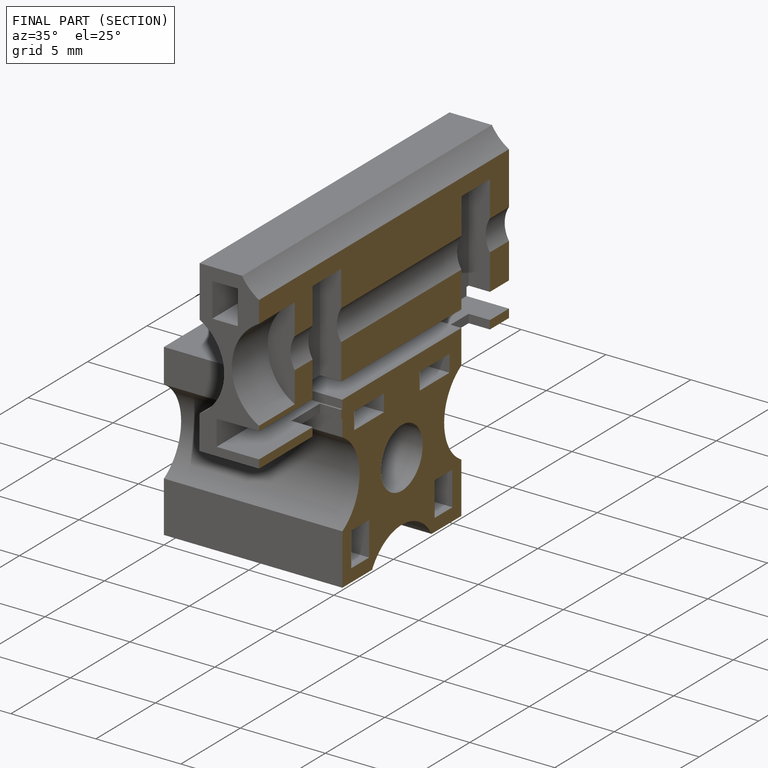
[diagram: finished part — half-section view (interior)]
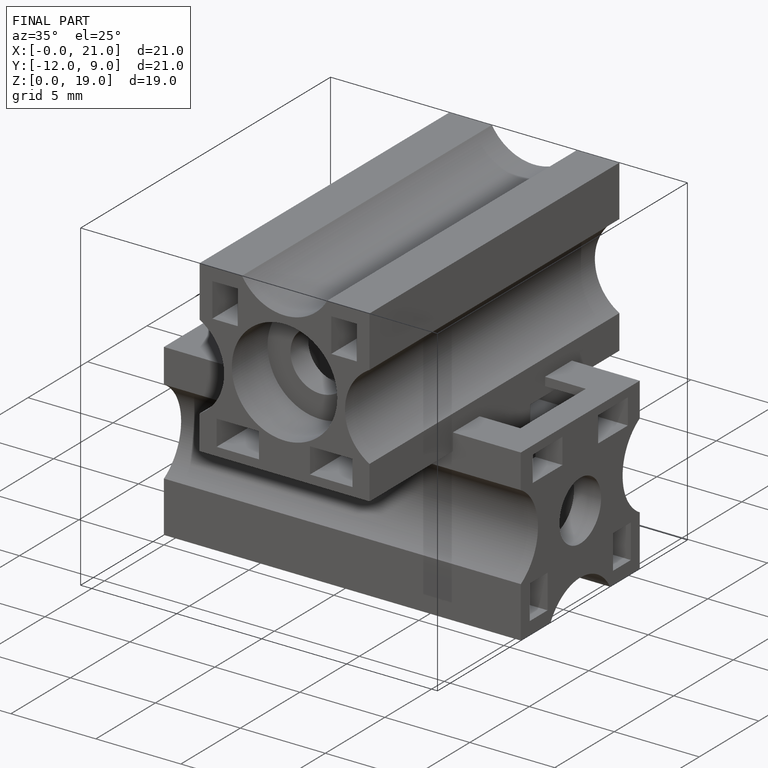
[diagram: finished part — iso view with bounding-box wireframe]
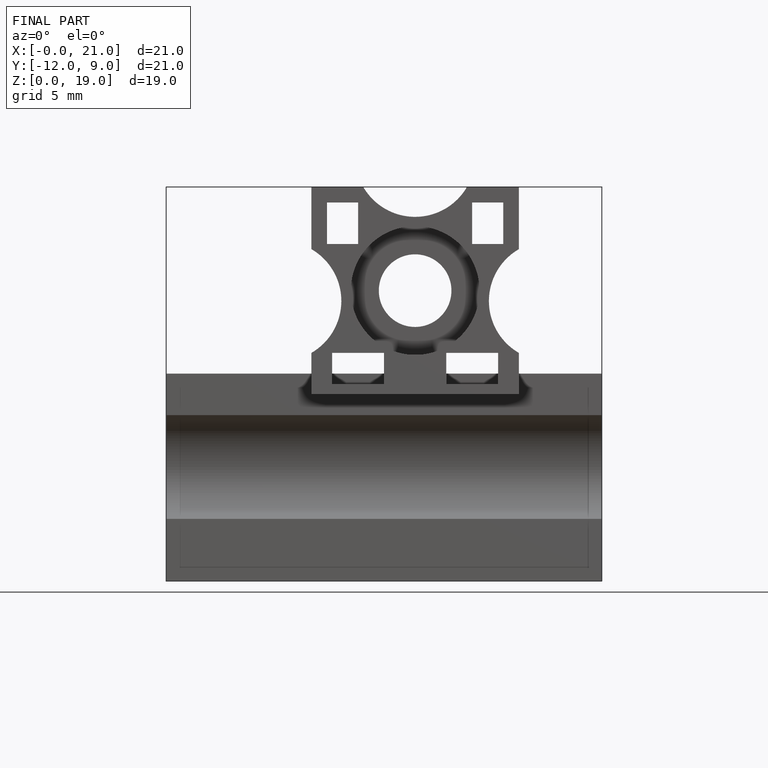
[diagram: finished part — front view with bounding-box wireframe]
